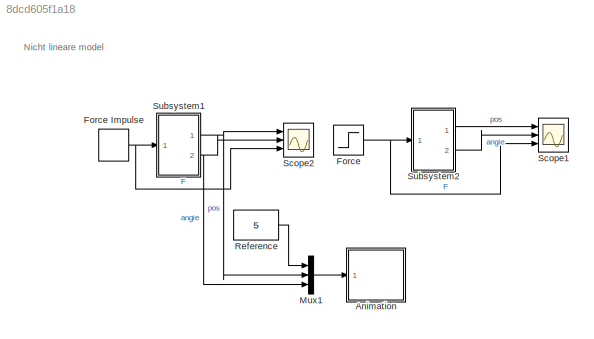
MODEL slx_8dcd605f1a18
KIND model
CONFIG AbsTol = auto
CONFIG EnableMultiTasking = off
CONFIG FixedStep = auto
CONFIG MaxStep = auto
CONFIG MinStep = auto
CONFIG RelTol = 1e-3
CONFIG SampleTimeConstraint = Unconstrained
CONFIG Solver = VariableStepAuto
CONFIG SolverName = VariableStepAuto
CONFIG StartTime = 0.0
CONFIG StopTime = 10.0
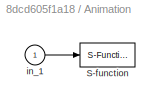
BLOCK [SubSystem] Animation
  Ports = [1]
  RequestExecContextInheritance = off
BLOCK [S-Function] Animation/S-function
  DeleteFcn = pendan([],[],[],'DeleteBlock');
  EnableBusSupport = off
  FunctionName = pendan
  Parameters = RefBlock
  Ports = [1]
  SFcnIsStateOwnerBlock = off
  SFunctionDeploymentMode = off
BLOCK [Inport] Animation/in_1
  IconDisplay = Port number
BLOCK [Step] Force
  After = 5
  SampleTime = 0
BLOCK [DiscretePulseGenerator] Force Impulse
  Amplitude = 100
  Period = 100
  PhaseDelay = 3
  Ports = [0, 1]
  PulseType = Time based
  PulseWidth = 0.01
BLOCK [Mux] Mux1
  DisplayOption = bar
  Inputs = 3
  Ports = [3, 1]
BLOCK [Constant] Reference
  Value = 5
BLOCK [Scope] Scope1
  Floating = off
  NumInputPorts = 3
  Ports = [3]
  ScopeSpecificationString = Simulink.scopes.TimeScopeBlockCfg('CurrentConfiguration', extmgr.ConfigurationSet(extmgr.Configuration('Core','General UI',true),extmgr.Configuration('Core','Source UI',true),extmgr.Configuration('Sources','WiredSimulink',true,'DataLoggingVariableName','ScopeData1'),extmgr.Configuration('Visuals','Time Domain',true,'SerializedDisplays',{struct('MinYLimReal','-20.17586','MaxYLimReal','172.53341','Y...<+1451ch>
BLOCK [Scope] Scope2
  Floating = off
  NumInputPorts = 3
  Ports = [3]
  ScopeSpecificationString = Simulink.scopes.TimeScopeBlockCfg('CurrentConfiguration', extmgr.ConfigurationSet(extmgr.Configuration('Core','General UI',true),extmgr.Configuration('Core','Source UI',true),extmgr.Configuration('Sources','WiredSimulink',true),extmgr.Configuration('Visuals','Time Domain',true,'SerializedDisplays',{struct('MinYLimReal','-13.29151','MaxYLimReal','112.58795','YLabelReal','','MinYLimMag','0.00000','M...<+1444ch>
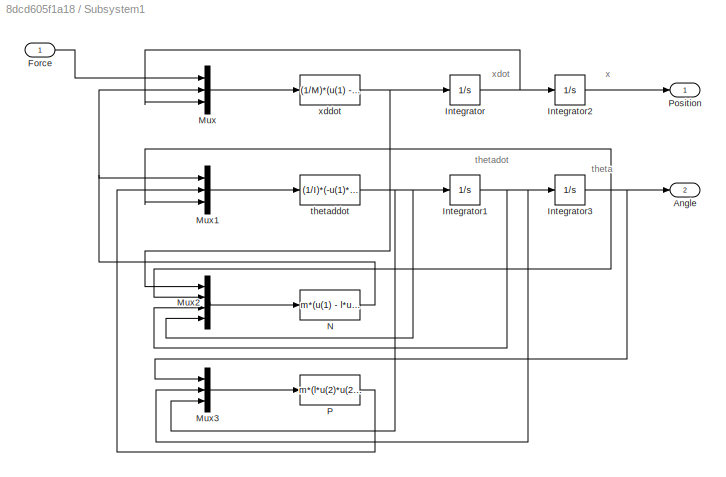
BLOCK [SubSystem] Subsystem1
  Ports = [1, 2]
  RequestExecContextInheritance = off
BLOCK [Outport] Subsystem1/Angle
  IconDisplay = Port number
  Port = 2
BLOCK [Inport] Subsystem1/Force
  IconDisplay = Port number
BLOCK [Integrator] Subsystem1/Integrator
  ContinuousStateAttributes = 'xdot'
  Ports = [1, 1]
BLOCK [Integrator] Subsystem1/Integrator1
  ContinuousStateAttributes = 'thetadot'
  Ports = [1, 1]
BLOCK [Integrator] Subsystem1/Integrator2
  ContinuousStateAttributes = 'x'
  Ports = [1, 1]
BLOCK [Integrator] Subsystem1/Integrator3
  ContinuousStateAttributes = 'theta'
  Ports = [1, 1]
BLOCK [Mux] Subsystem1/Mux
  DisplayOption = bar
  Inputs = 3
  Ports = [3, 1]
BLOCK [Mux] Subsystem1/Mux1
  DisplayOption = bar
  Inputs = 3
  Ports = [3, 1]
BLOCK [Mux] Subsystem1/Mux2
  DisplayOption = bar
  Ports = [4, 1]
BLOCK [Mux] Subsystem1/Mux3
  DisplayOption = bar
  Inputs = 3
  Ports = [3, 1]
BLOCK [Fcn] Subsystem1/N
  Expr = m*(u(1) - l*u(3)*u(3)*sin(u(2)) + l*u(4)*cos(u(2)))
BLOCK [Fcn] Subsystem1/P
  Expr = m*(l*u(2)*u(2)*cos(u(1)) + l*u(3)*sin(u(1)) + g)
BLOCK [Outport] Subsystem1/Position
  IconDisplay = Port number
BLOCK [Fcn] Subsystem1/thetaddot
  Expr = (1/I)*(-u(1)*l*cos(u(3)) - u(2)*l*sin(u(3)))
BLOCK [Fcn] Subsystem1/xddot
  Expr = (1/M)*(u(1) - u(2) - b*u(3))
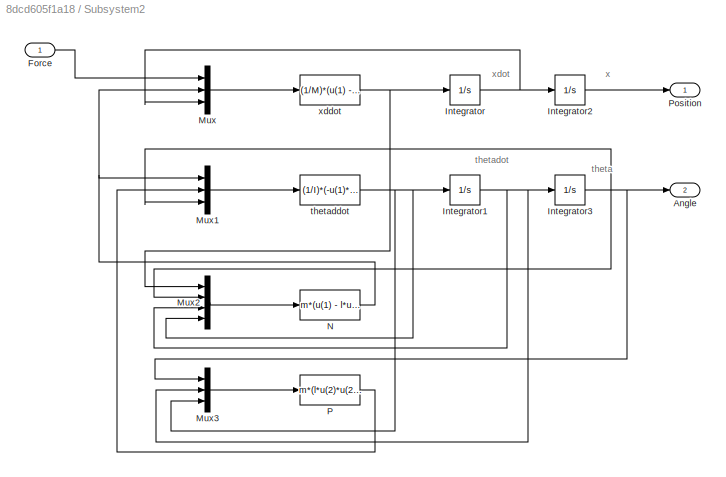
BLOCK [SubSystem] Subsystem2
  Ports = [1, 2]
  RequestExecContextInheritance = off
BLOCK [Outport] Subsystem2/Angle
  IconDisplay = Port number
  Port = 2
BLOCK [Inport] Subsystem2/Force
  IconDisplay = Port number
BLOCK [Integrator] Subsystem2/Integrator
  ContinuousStateAttributes = 'xdot'
  Ports = [1, 1]
BLOCK [Integrator] Subsystem2/Integrator1
  ContinuousStateAttributes = 'thetadot'
  Ports = [1, 1]
BLOCK [Integrator] Subsystem2/Integrator2
  ContinuousStateAttributes = 'x'
  Ports = [1, 1]
BLOCK [Integrator] Subsystem2/Integrator3
  ContinuousStateAttributes = 'theta'
  Ports = [1, 1]
BLOCK [Mux] Subsystem2/Mux
  DisplayOption = bar
  Inputs = 3
  Ports = [3, 1]
BLOCK [Mux] Subsystem2/Mux1
  DisplayOption = bar
  Inputs = 3
  Ports = [3, 1]
BLOCK [Mux] Subsystem2/Mux2
  DisplayOption = bar
  Ports = [4, 1]
BLOCK [Mux] Subsystem2/Mux3
  DisplayOption = bar
  Inputs = 3
  Ports = [3, 1]
BLOCK [Fcn] Subsystem2/N
  Expr = m*(u(1) - l*u(3)*u(3)*sin(u(2)) + l*u(4)*cos(u(2)))
BLOCK [Fcn] Subsystem2/P
  Expr = m*(l*u(2)*u(2)*cos(u(1)) + l*u(3)*sin(u(1)) + g)
BLOCK [Outport] Subsystem2/Position
  IconDisplay = Port number
BLOCK [Fcn] Subsystem2/thetaddot
  Expr = (1/I)*(-u(1)*l*cos(u(3)) - u(2)*l*sin(u(3)))
BLOCK [Fcn] Subsystem2/xddot
  Expr = (1/M)*(u(1) - u(2) - b*u(3))
ANNOTATION (root): Nicht lineare model
ANNOTATION Subsystem1: theta
ANNOTATION Subsystem1: thetadot
ANNOTATION Subsystem1: x
ANNOTATION Subsystem1: xdot
ANNOTATION Subsystem2: theta
ANNOTATION Subsystem2: thetadot
ANNOTATION Subsystem2: x
ANNOTATION Subsystem2: xdot
LINE Animation/in_1:1 -> Animation/S-function:1
NET Force Impulse:1 -> Scope2:3, Subsystem1:1
NET Force:1 -> Scope1:3, Subsystem2:1
LINE Mux1:1 -> Animation:1
LINE Reference:1 -> Mux1:1
LINE Subsystem1/Force:1 -> Subsystem1/Mux:1
NET Subsystem1/Integrator1:1 -> Subsystem1/Integrator3:1, Subsystem1/Mux2:3, Subsystem1/Mux3:2
LINE Subsystem1/Integrator2:1 -> Subsystem1/Position:1
NET Subsystem1/Integrator3:1 -> Subsystem1/Angle:1, Subsystem1/Mux1:3, Subsystem1/Mux2:2, Subsystem1/Mux3:1
NET Subsystem1/Integrator:1 -> Subsystem1/Integrator2:1, Subsystem1/Mux:3
LINE Subsystem1/Mux1:1 -> Subsystem1/thetaddot:1
LINE Subsystem1/Mux2:1 -> Subsystem1/N:1
LINE Subsystem1/Mux3:1 -> Subsystem1/P:1
LINE Subsystem1/Mux:1 -> Subsystem1/xddot:1
NET Subsystem1/N:1 -> Subsystem1/Mux1:1, Subsystem1/Mux:2
LINE Subsystem1/P:1 -> Subsystem1/Mux1:2
NET Subsystem1/thetaddot:1 -> Subsystem1/Integrator1:1, Subsystem1/Mux2:4, Subsystem1/Mux3:3
NET Subsystem1/xddot:1 -> Subsystem1/Integrator:1, Subsystem1/Mux2:1
NET Subsystem1:1 -> Mux1:2, Scope2:1
NET Subsystem1:2 -> Mux1:3, Scope2:2
LINE Subsystem2/Force:1 -> Subsystem2/Mux:1
NET Subsystem2/Integrator1:1 -> Subsystem2/Integrator3:1, Subsystem2/Mux2:3, Subsystem2/Mux3:2
LINE Subsystem2/Integrator2:1 -> Subsystem2/Position:1
NET Subsystem2/Integrator3:1 -> Subsystem2/Angle:1, Subsystem2/Mux1:3, Subsystem2/Mux2:2, Subsystem2/Mux3:1
NET Subsystem2/Integrator:1 -> Subsystem2/Integrator2:1, Subsystem2/Mux:3
LINE Subsystem2/Mux1:1 -> Subsystem2/thetaddot:1
LINE Subsystem2/Mux2:1 -> Subsystem2/N:1
LINE Subsystem2/Mux3:1 -> Subsystem2/P:1
LINE Subsystem2/Mux:1 -> Subsystem2/xddot:1
NET Subsystem2/N:1 -> Subsystem2/Mux1:1, Subsystem2/Mux:2
LINE Subsystem2/P:1 -> Subsystem2/Mux1:2
NET Subsystem2/thetaddot:1 -> Subsystem2/Integrator1:1, Subsystem2/Mux2:4, Subsystem2/Mux3:3
NET Subsystem2/xddot:1 -> Subsystem2/Integrator:1, Subsystem2/Mux2:1
LINE Subsystem2:1 -> Scope1:1
LINE Subsystem2:2 -> Scope1:2
note: NET lines group one-source signal fan-out (src -> all destinations, sorted); 1:1 wires keep LINE
